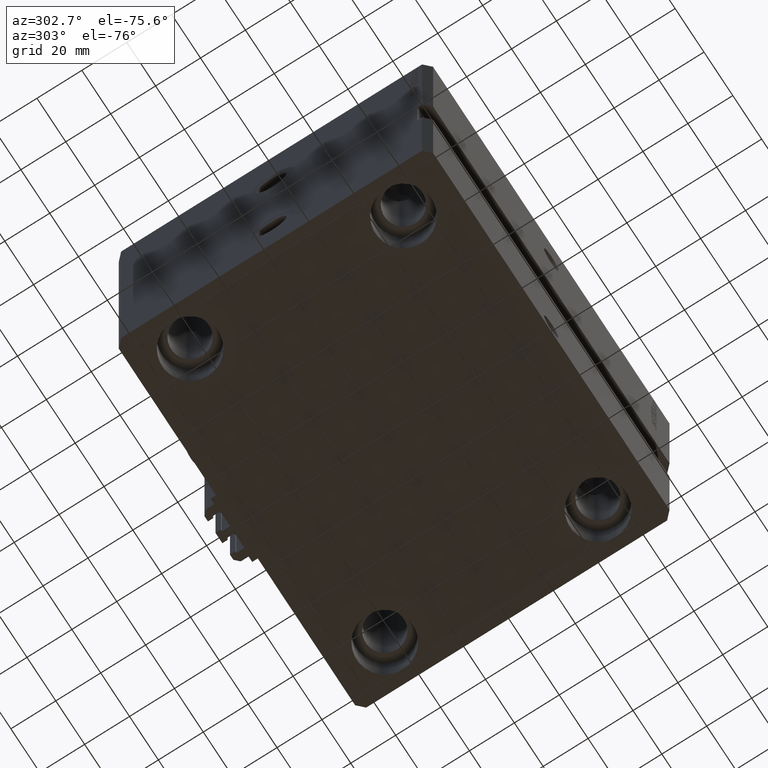
[diagram: clean part render]
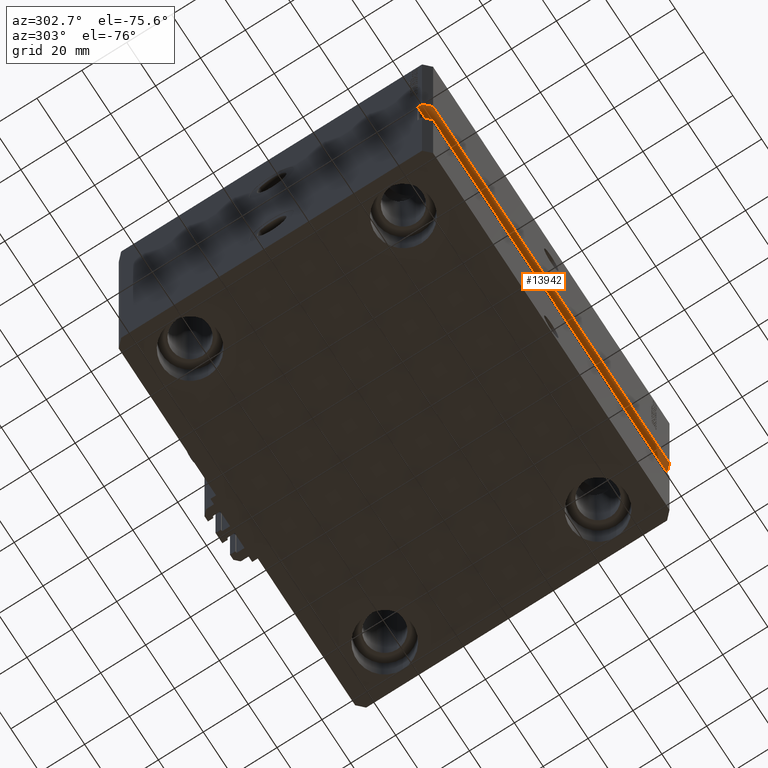
[diagram: same view with one face highlighted and labeled with its STEP entity id]
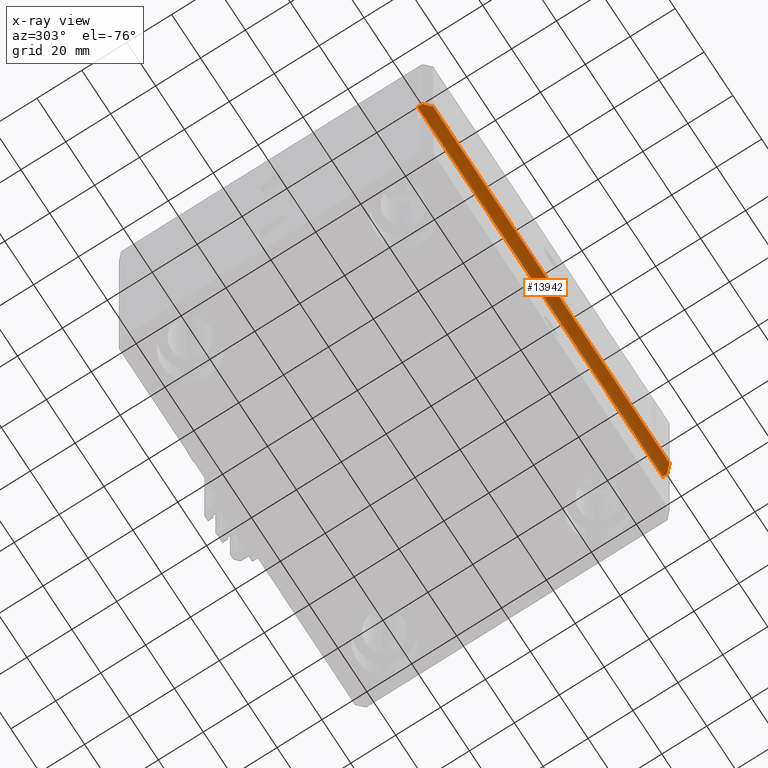
[diagram: x-ray of the same camera — body ghosted, the highlighted face saturated]
A machine part, auxiliary view. The second image highlights one B-rep face of the part: STEP entity #13942.
The next image is the same camera in x-ray: the body ghosted, the highlighted face saturated — about 18% of this face is hidden behind the body in this view.
In plain terms, the highlighted planar face has unit normal (-0, -0, 1).
Its self-contained STEP definition (entity closure, byte-faithful):
#375 = DIRECTION ( 'NONE',  ( -1.000000000000000000, -1.632680918566406300E-16, -2.449021377849609204E-16 ) ) ;
#1614 = DIRECTION ( 'NONE',  ( 1.000000000000000000, 0.000000000000000000, 2.449021377849609204E-16 ) ) ;
#1913 = LINE ( 'NONE', #16599, #31631 ) ;
#5760 = EDGE_CURVE ( 'NONE', #42741, #47383, #21632, .T. ) ;
#6613 = LINE ( 'NONE', #22018, #34772 ) ;
#7330 = DIRECTION ( 'NONE',  ( -1.000000000000000000, -1.632680918566406300E-16, -2.449021377849609204E-16 ) ) ;
#9196 = DIRECTION ( 'NONE',  ( -2.449021377849609204E-16, -2.880254154118838729E-32, 1.000000000000000000 ) ) ;
#9795 = EDGE_CURVE ( 'NONE', #47383, #10916, #29876, .T. ) ;
#10916 = VERTEX_POINT ( 'NONE', #13974 ) ;
#11051 = VECTOR ( 'NONE', #375, 1000.000000000000000 ) ;
#11312 = LINE ( 'NONE', #18895, #37740 ) ;
#11989 = DIRECTION ( 'NONE',  ( -0.7071067811865459074, -0.7071067811865491270, -1.731719623548277058E-16 ) ) ;
#12510 = ORIENTED_EDGE ( 'NONE', *, *, #21563, .F. ) ;
#13942 = ADVANCED_FACE ( 'NONE', ( #38829 ), #35155, .F. ) ;
#13974 = CARTESIAN_POINT ( 'NONE',  ( 82.00000000000001421, -69.99999999999998579, -59.99999999999998579 ) ) ;
#14296 = CARTESIAN_POINT ( 'NONE',  ( 85.00000000000001421, -64.99999999999998579, -59.99999999999998579 ) ) ;
#14825 = CARTESIAN_POINT ( 'NONE',  ( 85.00000000000001421, -64.99999999999998579, -59.99999999999998579 ) ) ;
#16599 = CARTESIAN_POINT ( 'NONE',  ( -85.00000000000002842, -66.99999999999998579, -60.00000000000002842 ) ) ;
#18236 = LINE ( 'NONE', #14825, #11051 ) ;
#18895 = CARTESIAN_POINT ( 'NONE',  ( -85.00000000000001421, -65.00000000000001421, -60.00000000000002842 ) ) ;
#18902 = CARTESIAN_POINT ( 'NONE',  ( -85.00000000000001421, -67.00000000000000000, -60.00000000000002842 ) ) ;
#19271 = VECTOR ( 'NONE', #29238, 1000.000000000000000 ) ;
#21563 = EDGE_CURVE ( 'NONE', #42741, #38582, #18236, .T. ) ;
#21632 = LINE ( 'NONE', #14296, #19271 ) ;
#22018 = CARTESIAN_POINT ( 'NONE',  ( 85.00000000000001421, -69.99999999999998579, -59.99999999999998579 ) ) ;
#22822 = EDGE_LOOP ( 'NONE', ( #29891, #23652, #30504, #22884, #12510, #48046 ) ) ;
#22884 = ORIENTED_EDGE ( 'NONE', *, *, #27713, .F. ) ;
#23443 = CARTESIAN_POINT ( 'NONE',  ( -82.00000000000001421, -70.00000000000000000, -59.99999999999998579 ) ) ;
#23652 = ORIENTED_EDGE ( 'NONE', *, *, #25821, .T. ) ;
#25666 = AXIS2_PLACEMENT_3D ( 'NONE', #39295, #9196, #1614 ) ;
#25821 = EDGE_CURVE ( 'NONE', #10916, #43342, #6613, .T. ) ;
#26033 = EDGE_CURVE ( 'NONE', #43342, #48036, #1913, .T. ) ;
#26746 = DIRECTION ( 'NONE',  ( 1.176083712526788232E-16, -1.000000000000000000, -0.000000000000000000 ) ) ;
#27713 = EDGE_CURVE ( 'NONE', #38582, #48036, #11312, .T. ) ;
#28362 = DIRECTION ( 'NONE',  ( -0.7071067811865474617, 0.7071067811865474617, -1.731719623548280509E-16 ) ) ;
#28621 = CARTESIAN_POINT ( 'NONE',  ( 85.00000000000001421, -64.99999999999998579, -59.99999999999998579 ) ) ;
#29238 = DIRECTION ( 'NONE',  ( 1.176083712526788232E-16, -1.000000000000000000, -0.000000000000000000 ) ) ;
#29635 = CARTESIAN_POINT ( 'NONE',  ( 82.00000000000000000, -70.00000000000001421, -59.99999999999998579 ) ) ;
#29876 = LINE ( 'NONE', #29635, #36602 ) ;
#29891 = ORIENTED_EDGE ( 'NONE', *, *, #9795, .T. ) ;
#30504 = ORIENTED_EDGE ( 'NONE', *, *, #26033, .T. ) ;
#31631 = VECTOR ( 'NONE', #28362, 1000.000000000000114 ) ;
#34772 = VECTOR ( 'NONE', #7330, 1000.000000000000000 ) ;
#35155 = PLANE ( 'NONE',  #25666 ) ;
#36602 = VECTOR ( 'NONE', #11989, 1000.000000000000000 ) ;
#37740 = VECTOR ( 'NONE', #26746, 1000.000000000000000 ) ;
#38582 = VERTEX_POINT ( 'NONE', #46872 ) ;
#38829 = FACE_OUTER_BOUND ( 'NONE', #22822, .T. ) ;
#39295 = CARTESIAN_POINT ( 'NONE',  ( 85.00000000000001421, -64.99999999999998579, -59.99999999999998579 ) ) ;
#42741 = VERTEX_POINT ( 'NONE', #28621 ) ;
#43342 = VERTEX_POINT ( 'NONE', #23443 ) ;
#46756 = CARTESIAN_POINT ( 'NONE',  ( 85.00000000000001421, -66.99999999999998579, -59.99999999999998579 ) ) ;
#46872 = CARTESIAN_POINT ( 'NONE',  ( -85.00000000000001421, -65.00000000000001421, -60.00000000000002842 ) ) ;
#47383 = VERTEX_POINT ( 'NONE', #46756 ) ;
#48036 = VERTEX_POINT ( 'NONE', #18902 ) ;
#48046 = ORIENTED_EDGE ( 'NONE', *, *, #5760, .T. ) ;